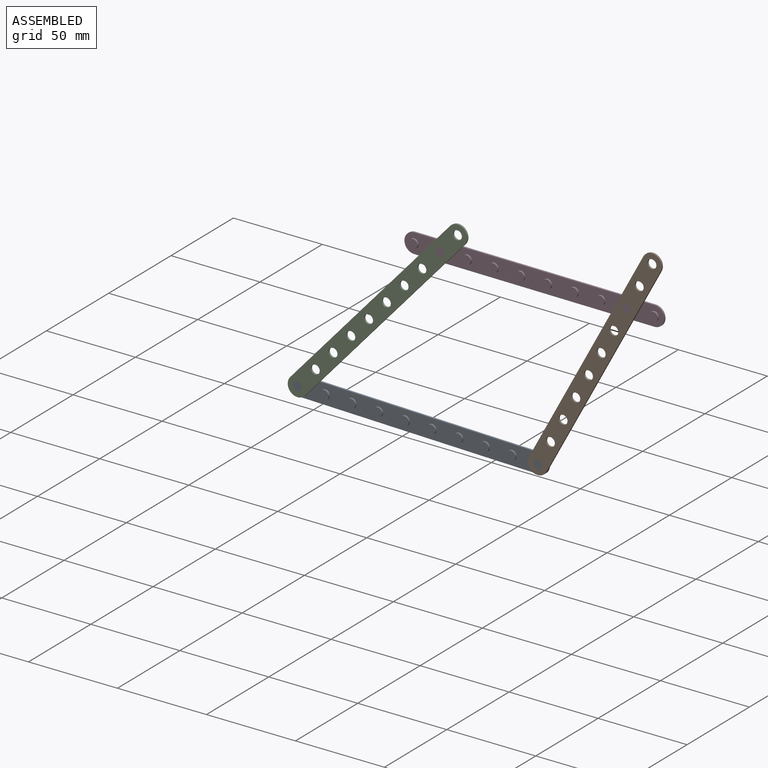
[diagram: assembled view]
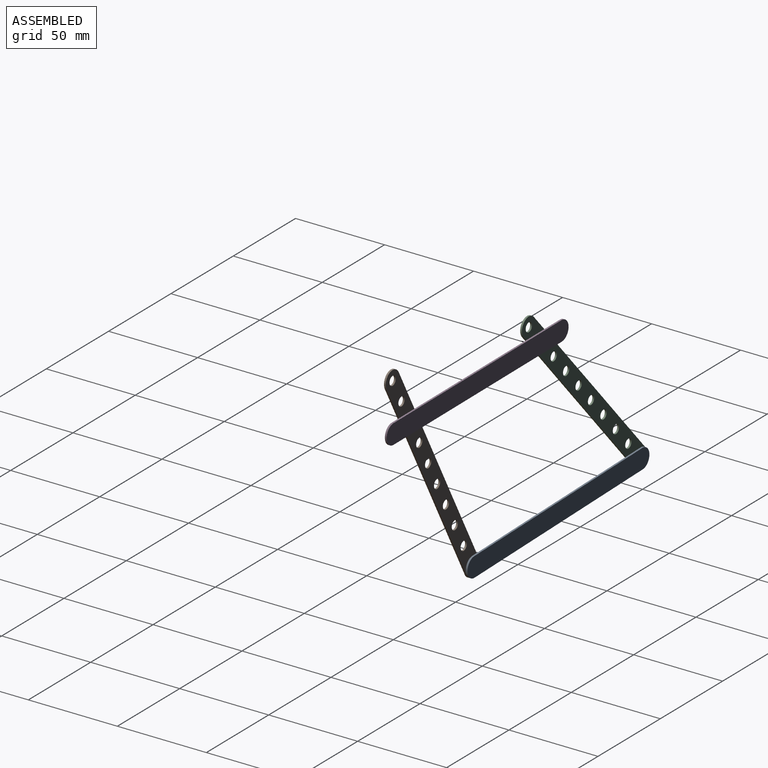
[diagram: assembled view, second angle]
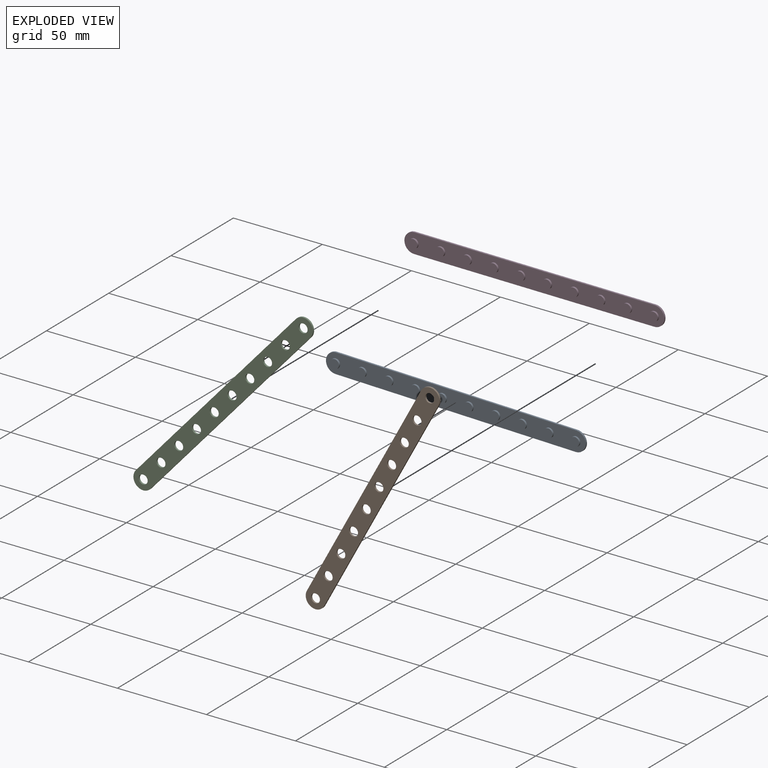
[diagram: exploded view]
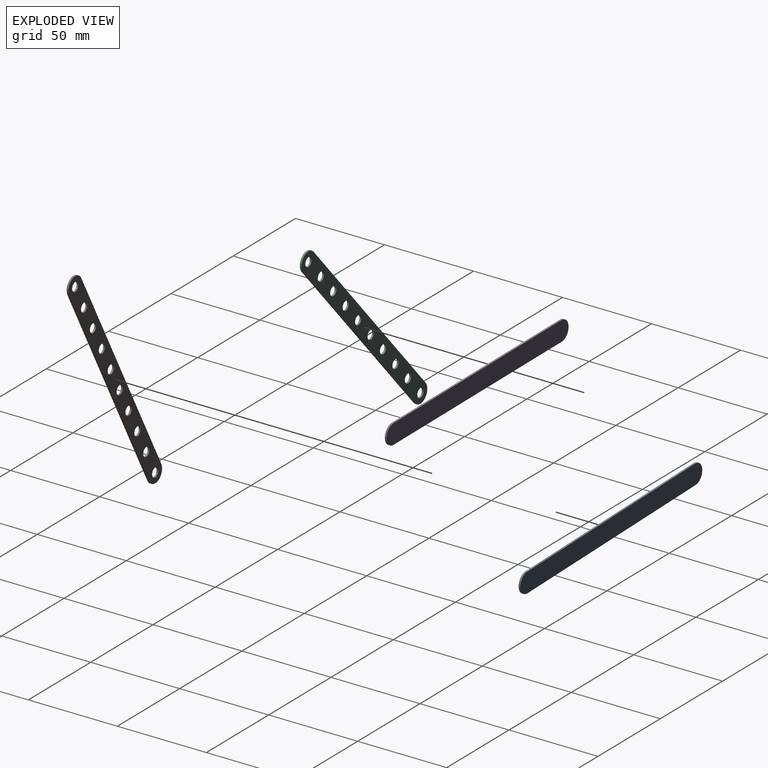
[diagram: exploded view, second angle]
ASSEMBLY  parts=4 mates=4
PART A: 26 faces, bbox 146x2x11 mm
  f0: plane 135x1mm, normal (0,0,-1), area 135mm2, adj f1,f3,f4,f5
  f1: cylinder r=5.5mm len=11mm, axis (0,1,0), area 17.2mm2, adj f0,f2,f4,f5
  f2: plane 135.07x1mm, normal (0,0,1), area 135.1mm2, adj f1,f3,f4,f5
  f3: cylinder r=5.5mm len=11mm, axis (0,1,0), area 17.3mm2, adj f0,f2,f4,f5
  f4: plane 146x11mm, normal (0,-1,0), area 1383.7mm2, adj f0,f1,f2,f3,f6,f8,f10,f12
  f5: plane 146x11mm, normal (0,1,0), area 1580mm2, adj f0,f1,f2,f3
  f6: cylinder r=2.5mm len=5mm, axis (0,1,0), area 15.7mm2, adj f4,f7
  f7: plane 5x5mm, normal (0,-1,0), area 19.6mm2, adj f6
  f8: cylinder r=2.5mm len=5mm, axis (0,1,0), area 15.7mm2, adj f4,f9
  f9: plane 5x5mm, normal (0,-1,0), area 19.6mm2, adj f8
  f10: cylinder r=2.5mm len=5mm, axis (0,1,0), area 15.7mm2, adj f4,f11
  f11: plane 5x5mm, normal (0,-1,0), area 19.6mm2, adj f10
  f12: cylinder r=2.5mm len=5mm, axis (0,1,0), area 15.7mm2, adj f4,f13
  f13: plane 5x5mm, normal (0,-1,0), area 19.6mm2, adj f12
  f14: cylinder r=2.5mm len=5mm, axis (0,1,0), area 15.7mm2, adj f4,f15
  f15: plane 5x5mm, normal (0,-1,0), area 19.6mm2, adj f14
  f16: cylinder r=2.5mm len=5mm, axis (0,1,0), area 15.7mm2, adj f4,f17
  f17: plane 5x5mm, normal (0,-1,0), area 19.6mm2, adj f16
  f18: cylinder r=2.5mm len=5mm, axis (0,1,0), area 15.7mm2, adj f4,f19
  f19: plane 5x5mm, normal (0,-1,0), area 19.6mm2, adj f18
  f20: cylinder r=2.5mm len=5mm, axis (0,1,0), area 15.7mm2, adj f4,f21
  f21: plane 5x5mm, normal (0,-1,0), area 19.6mm2, adj f20
  f22: cylinder r=2.5mm len=5mm, axis (0,1,0), area 15.7mm2, adj f4,f23
  f23: plane 5x5mm, normal (0,-1,0), area 19.6mm2, adj f22
  f24: cylinder r=2.5mm len=5mm, axis (0,1,0), area 15.7mm2, adj f4,f25
  f25: plane 5x5mm, normal (0,-1,0), area 19.6mm2, adj f24
PART B: 16 faces, bbox 146x1x11 mm
  f0: plane 135x1mm, normal (0,0,-1), area 135mm2, adj f1,f12,f14,f15
  f1: cylinder r=5.5mm len=11mm, axis (0,-1,0), area 17.2mm2, adj f0,f2,f14,f15
  f2: plane 135.07x1mm, normal (0,0,1), area 135.1mm2, adj f1,f12,f14,f15
  f3: cylinder r=2.5mm len=5mm, axis (0,-1,0), area 15.7mm2, adj f14,f15
  f4: cylinder r=2.5mm len=5mm, axis (0,-1,0), area 15.7mm2, adj f14,f15
  f5: cylinder r=2.5mm len=5mm, axis (0,-1,0), area 15.7mm2, adj f14,f15
  f6: cylinder r=2.5mm len=5mm, axis (0,-1,0), area 15.7mm2, adj f14,f15
  f7: cylinder r=2.5mm len=5mm, axis (0,-1,0), area 15.7mm2, adj f14,f15
  f8: cylinder r=2.5mm len=5mm, axis (0,-1,0), area 15.7mm2, adj f14,f15
  f9: cylinder r=2.5mm len=5mm, axis (0,-1,0), area 15.7mm2, adj f14,f15
  f10: cylinder r=2.5mm len=5mm, axis (0,-1,0), area 15.7mm2, adj f14,f15
  f11: cylinder r=2.5mm len=5mm, axis (0,-1,0), area 15.7mm2, adj f14,f15
  f12: cylinder r=5.5mm len=11mm, axis (0,-1,0), area 17.3mm2, adj f0,f2,f14,f15
  f13: cylinder r=2.5mm len=5mm, axis (0,-1,0), area 15.7mm2, adj f14,f15
  f14: plane 146x11mm, normal (0,1,0), area 1383.7mm2, adj f0,f1,f2,f3,f4,f5,f6,f7
  f15: plane 146x11mm, normal (0,-1,0), area 1383.7mm2, adj f0,f1,f2,f3,f4,f5,f6,f7
PART C: same geometry as B
PART D: same geometry as A
PLACE A rot(axis=(0,1,0),1.5deg) t=(-5.04,-3.51,-61.5)mm fixed
PLACE B rot(axis=(0,1,0),118.4deg) t=(194.08,-5.51,53.82)mm
PLACE C rot(axis=(0,-1,0),48.3deg) t=(-5.04,-5.51,-61.5)mm
PLACE D rot(axis=(0,1,0),0.3deg) t=(59.82,-3.51,28.15)mm
MATE revolute A.f24 <-> B.f1  axis (0,-1,0) through (129.91,-4.51,-64.95)mm
MATE revolute C.f11 <-> A.f6  axis (0,-1,0) through (-5.04,-5.51,-61.5)mm
MATE revolute B.f9 <-> D.f22  axis (0,1,0) through (179.82,-4.51,27.43)mm
MATE revolute D.f8 <-> C.f3  axis (0,-1,0) through (74.82,-4.51,28.06)mm
